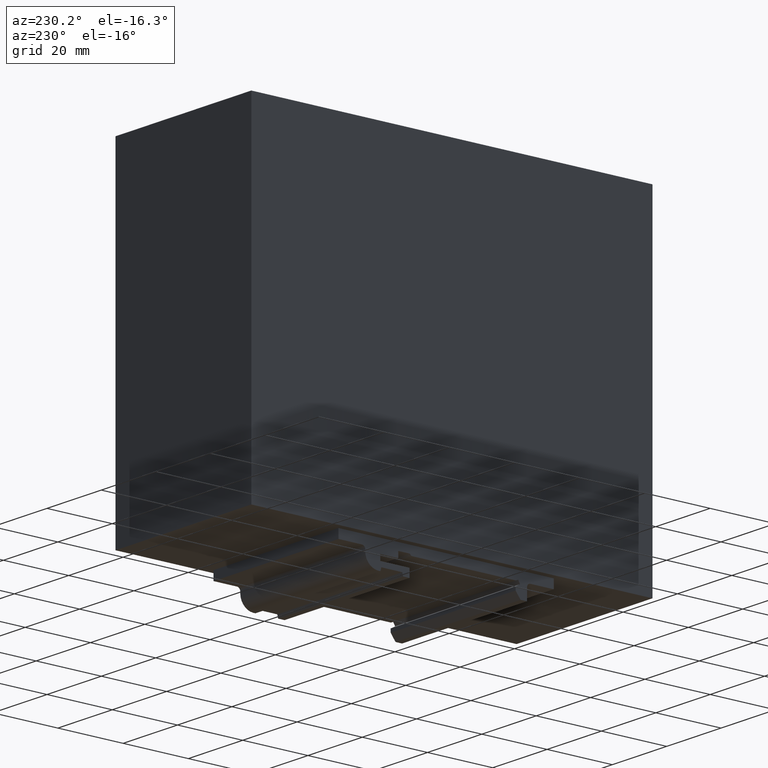
[diagram: clean part render]
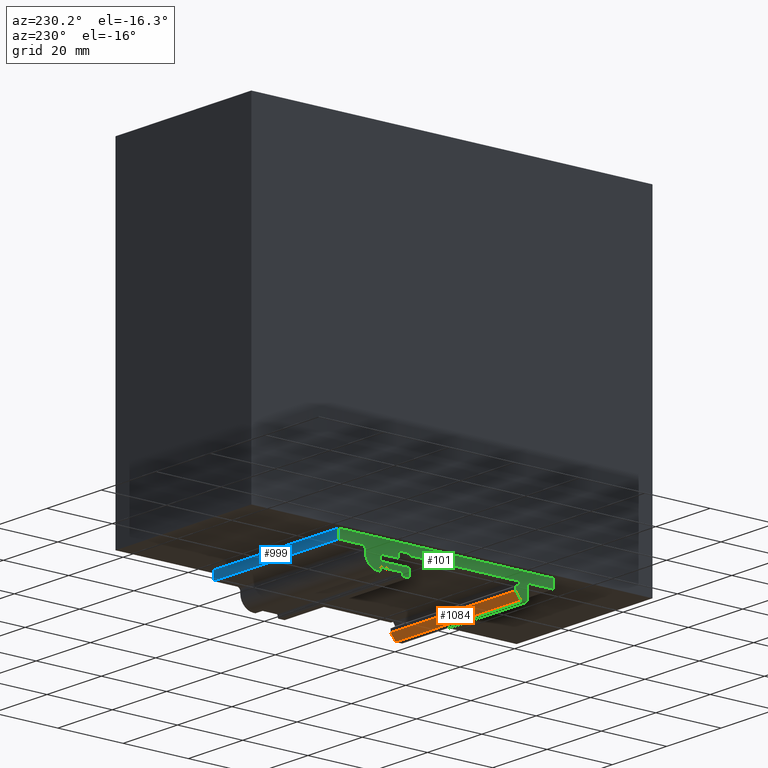
[diagram: same view with three faces highlighted in distinct colors, each labeled with its STEP entity id]
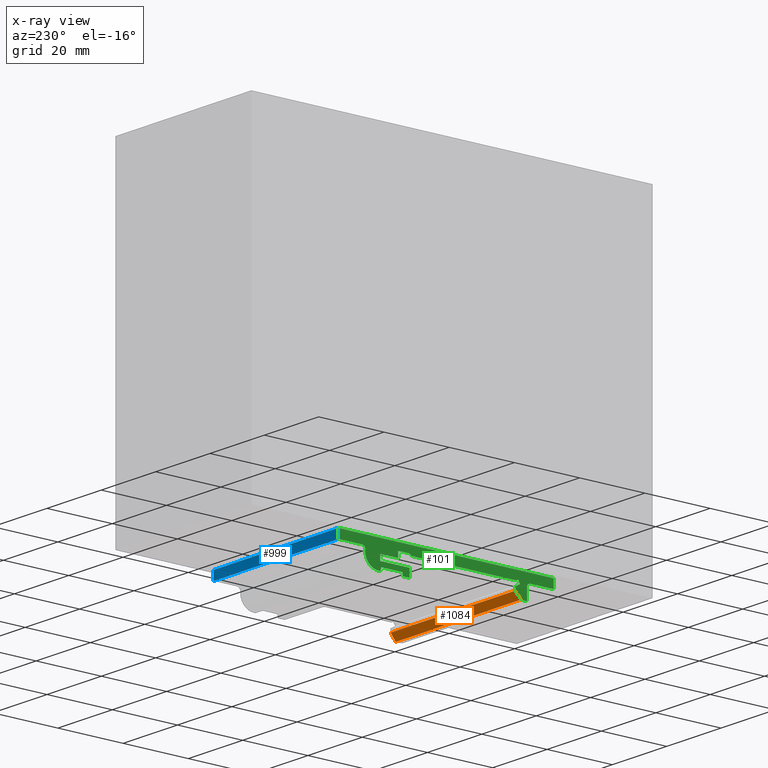
[diagram: x-ray of the same camera — body ghosted, the three highlighted faces saturated]
A machine part, auxiliary view with three faces highlighted in distinct colors.
The next image is the same camera in x-ray (body ghosted, the three faces saturated) — at least one of them is partly hidden behind the body in this view.
Their STEP definitions:

[orange] entity #1084 — the highlighted planar face has unit normal (0, -0.8, 0.6).
#20 = CARTESIAN_POINT ( 'NONE',  ( -25.00000000000000000, -21.19999999999999200, -55.99500000000000500 ) ) ;
#26 = CARTESIAN_POINT ( 'NONE',  ( 22.99999999999999300, -22.69999999999999200, -57.99500000000000500 ) ) ;
#31 = EDGE_CURVE ( 'NONE', #1041, #934, #838, .T. ) ;
#71 = CARTESIAN_POINT ( 'NONE',  ( 22.99999999999999300, -21.19999999999999200, -55.99500000000000500 ) ) ;
#82 = CARTESIAN_POINT ( 'NONE',  ( 0.0000000000000000000, -22.69999999999999200, -57.99500000000000500 ) ) ;
#93 = CARTESIAN_POINT ( 'NONE',  ( -23.00000000000000700, -24.21199999999998200, -60.01099999999999600 ) ) ;
#100 = VECTOR ( 'NONE', #741, 1000.000000000000000 ) ;
#110 = ORIENTED_EDGE ( 'NONE', *, *, #1024, .F. ) ;
#147 = VECTOR ( 'NONE', #177, 1000.000000000000100 ) ;
#154 = VECTOR ( 'NONE', #223, 1000.000000000000000 ) ;
#177 = DIRECTION ( 'NONE',  ( 0.0000000000000000000, -0.5999999999999990900, -0.8000000000000006000 ) ) ;
#178 = LINE ( 'NONE', #82, #100 ) ;
#223 = DIRECTION ( 'NONE',  ( 1.000000000000000000, -0.0000000000000000000, -0.0000000000000000000 ) ) ;
#280 = CARTESIAN_POINT ( 'NONE',  ( -23.00000000000000700, -21.19999999999999200, -55.99500000000000500 ) ) ;
#376 = DIRECTION ( 'NONE',  ( 0.0000000000000000000, -0.5999999999999992000, -0.8000000000000007100 ) ) ;
#506 = ORIENTED_EDGE ( 'NONE', *, *, #872, .T. ) ;
#517 = ORIENTED_EDGE ( 'NONE', *, *, #31, .T. ) ;
#525 = LINE ( 'NONE', #71, #147 ) ;
#557 = AXIS2_PLACEMENT_3D ( 'NONE', #653, #1104, #376 ) ;
#635 = EDGE_LOOP ( 'NONE', ( #517, #506, #852, #110 ) ) ;
#653 = CARTESIAN_POINT ( 'NONE',  ( -25.00000000000000000, -21.19999999999999200, -55.99500000000000500 ) ) ;
#731 = FACE_OUTER_BOUND ( 'NONE', #635, .T. ) ;
#741 = DIRECTION ( 'NONE',  ( -1.000000000000000000, 0.0000000000000000000, 0.0000000000000000000 ) ) ;
#754 = DIRECTION ( 'NONE',  ( 0.0000000000000000000, -0.5999999999999990900, -0.8000000000000007100 ) ) ;
#838 = LINE ( 'NONE', #20, #154 ) ;
#852 = ORIENTED_EDGE ( 'NONE', *, *, #921, .T. ) ;
#870 = VERTEX_POINT ( 'NONE', #1087 ) ;
#872 = EDGE_CURVE ( 'NONE', #934, #1173, #525, .T. ) ;
#903 = LINE ( 'NONE', #93, #1050 ) ;
#921 = EDGE_CURVE ( 'NONE', #1173, #870, #178, .T. ) ;
#934 = VERTEX_POINT ( 'NONE', #1000 ) ;
#1000 = CARTESIAN_POINT ( 'NONE',  ( 22.99999999999999300, -21.19999999999999200, -55.99500000000000500 ) ) ;
#1024 = EDGE_CURVE ( 'NONE', #1041, #870, #903, .T. ) ;
#1041 = VERTEX_POINT ( 'NONE', #280 ) ;
#1050 = VECTOR ( 'NONE', #754, 1000.000000000000000 ) ;
#1084 = ADVANCED_FACE ( 'NONE', ( #731 ), #1097, .F. ) ;
#1087 = CARTESIAN_POINT ( 'NONE',  ( -23.00000000000000700, -22.69999999999999200, -57.99500000000000500 ) ) ;
#1097 = PLANE ( 'NONE',  #557 ) ;
#1104 = DIRECTION ( 'NONE',  ( 0.0000000000000000000, -0.8000000000000007100, 0.5999999999999992000 ) ) ;
#1173 = VERTEX_POINT ( 'NONE', #26 ) ;

[blue] entity #999 — the highlighted planar face has unit normal (0, -1, -0).
#29 = ORIENTED_EDGE ( 'NONE', *, *, #264, .F. ) ;
#54 = EDGE_LOOP ( 'NONE', ( #693, #29, #1159, #800 ) ) ;
#125 = VERTEX_POINT ( 'NONE', #697 ) ;
#141 = DIRECTION ( 'NONE',  ( -0.0000000000000000000, -0.0000000000000000000, 1.000000000000000000 ) ) ;
#146 = CARTESIAN_POINT ( 'NONE',  ( 22.99999999999999300, 33.10000000000000900, -53.49500000000000500 ) ) ;
#179 = CARTESIAN_POINT ( 'NONE',  ( 22.99999999999999300, 33.10000000000000900, -50.79500000000000900 ) ) ;
#188 = DIRECTION ( 'NONE',  ( 0.0000000000000000000, -1.000000000000000000, -0.0000000000000000000 ) ) ;
#207 = LINE ( 'NONE', #373, #690 ) ;
#214 = VERTEX_POINT ( 'NONE', #146 ) ;
#264 = EDGE_CURVE ( 'NONE', #214, #599, #1153, .T. ) ;
#275 = AXIS2_PLACEMENT_3D ( 'NONE', #283, #188, #927 ) ;
#283 = CARTESIAN_POINT ( 'NONE',  ( 22.99999999999999300, 33.10000000000000900, -53.49500000000000500 ) ) ;
#373 = CARTESIAN_POINT ( 'NONE',  ( 22.99999999999999300, 33.10000000000000900, -53.49500000000000500 ) ) ;
#490 = CARTESIAN_POINT ( 'NONE',  ( 22.99999999999999300, 33.10000000000000900, -50.79500000000000900 ) ) ;
#518 = DIRECTION ( 'NONE',  ( -0.0000000000000000000, -0.0000000000000000000, 1.000000000000000000 ) ) ;
#578 = EDGE_CURVE ( 'NONE', #125, #599, #1141, .T. ) ;
#599 = VERTEX_POINT ( 'NONE', #490 ) ;
#622 = CARTESIAN_POINT ( 'NONE',  ( -23.00000000000000700, 33.10000000000000900, -53.49500000000000500 ) ) ;
#690 = VECTOR ( 'NONE', #1017, 1000.000000000000000 ) ;
#693 = ORIENTED_EDGE ( 'NONE', *, *, #578, .T. ) ;
#697 = CARTESIAN_POINT ( 'NONE',  ( -23.00000000000000700, 33.10000000000000900, -50.79500000000000900 ) ) ;
#739 = EDGE_CURVE ( 'NONE', #1008, #125, #1037, .T. ) ;
#800 = ORIENTED_EDGE ( 'NONE', *, *, #739, .T. ) ;
#833 = VECTOR ( 'NONE', #518, 1000.000000000000000 ) ;
#906 = VECTOR ( 'NONE', #944, 1000.000000000000000 ) ;
#927 = DIRECTION ( 'NONE',  ( 0.0000000000000000000, 0.0000000000000000000, -1.000000000000000000 ) ) ;
#930 = CARTESIAN_POINT ( 'NONE',  ( -23.00000000000000700, 33.10000000000000900, -53.49500000000000500 ) ) ;
#944 = DIRECTION ( 'NONE',  ( 1.000000000000000000, -0.0000000000000000000, -0.0000000000000000000 ) ) ;
#989 = FACE_OUTER_BOUND ( 'NONE', #54, .T. ) ;
#999 = ADVANCED_FACE ( 'NONE', ( #989 ), #1100, .F. ) ;
#1001 = EDGE_CURVE ( 'NONE', #1008, #214, #207, .T. ) ;
#1008 = VERTEX_POINT ( 'NONE', #930 ) ;
#1017 = DIRECTION ( 'NONE',  ( 1.000000000000000000, -0.0000000000000000000, -0.0000000000000000000 ) ) ;
#1037 = LINE ( 'NONE', #622, #833 ) ;
#1100 = PLANE ( 'NONE',  #275 ) ;
#1141 = LINE ( 'NONE', #179, #906 ) ;
#1153 = LINE ( 'NONE', #1158, #1171 ) ;
#1158 = CARTESIAN_POINT ( 'NONE',  ( 22.99999999999999300, 33.10000000000000900, -53.49500000000000500 ) ) ;
#1159 = ORIENTED_EDGE ( 'NONE', *, *, #1001, .F. ) ;
#1171 = VECTOR ( 'NONE', #141, 1000.000000000000000 ) ;

[green] entity #101 — the highlighted planar face has unit normal (1, -0, 0).
#2 = CARTESIAN_POINT ( 'NONE',  ( -23.00000000000000700, -32.89999999999999100, -53.49500000000000500 ) ) ;
#7 = CARTESIAN_POINT ( 'NONE',  ( -23.00000000000000700, 14.80000000000001500, -53.49500000000000500 ) ) ;
#10 = LINE ( 'NONE', #326, #691 ) ;
#14 = EDGE_LOOP ( 'NONE', ( #400, #259, #1076, #840, #368, #650, #893, #1134, #488, #356, #383, #1007, #1044, #1157, #520, #182, #825, #1028, #711, #681, #939, #318, #150, #519, #88, #755, #229, #1130, #503 ) ) ;
#17 = EDGE_CURVE ( 'NONE', #545, #709, #65, .T. ) ;
#18 = DIRECTION ( 'NONE',  ( -0.0000000000000000000, -0.8658650732445497500, 0.5002775978746304400 ) ) ;
#19 = DIRECTION ( 'NONE',  ( -0.0000000000000000000, -0.0000000000000000000, 1.000000000000000000 ) ) ;
#24 = EDGE_CURVE ( 'NONE', #531, #185, #529, .T. ) ;
#37 = EDGE_CURVE ( 'NONE', #963, #185, #498, .T. ) ;
#39 = CARTESIAN_POINT ( 'NONE',  ( -23.00000000000000700, 14.80000000000001300, -54.79500000000000200 ) ) ;
#40 = LINE ( 'NONE', #380, #1027 ) ;
#50 = EDGE_CURVE ( 'NONE', #135, #246, #162, .T. ) ;
#61 = CARTESIAN_POINT ( 'NONE',  ( -23.00000000000000700, -25.69999999999999200, -53.49500000000000500 ) ) ;
#65 = LINE ( 'NONE', #764, #466 ) ;
#70 = EDGE_CURVE ( 'NONE', #709, #135, #1109, .T. ) ;
#83 = EDGE_CURVE ( 'NONE', #180, #125, #10, .T. ) ;
#88 = ORIENTED_EDGE ( 'NONE', *, *, #1082, .T. ) ;
#89 = VECTOR ( 'NONE', #219, 1000.000000000000000 ) ;
#91 = EDGE_CURVE ( 'NONE', #439, #346, #1067, .T. ) ;
#93 = CARTESIAN_POINT ( 'NONE',  ( -23.00000000000000700, -24.21199999999998200, -60.01099999999999600 ) ) ;
#101 = ADVANCED_FACE ( 'NONE', ( #437 ), #1139, .F. ) ;
#116 = DIRECTION ( 'NONE',  ( 0.0000000000000000000, 1.000000000000000000, 0.0000000000000000000 ) ) ;
#117 = LINE ( 'NONE', #1155, #776 ) ;
#118 = VERTEX_POINT ( 'NONE', #39 ) ;
#123 = DIRECTION ( 'NONE',  ( 0.0000000000000000000, 1.000000000000000000, 0.0000000000000000000 ) ) ;
#125 = VERTEX_POINT ( 'NONE', #697 ) ;
#126 = AXIS2_PLACEMENT_3D ( 'NONE', #971, #783, #774 ) ;
#129 = CARTESIAN_POINT ( 'NONE',  ( -23.00000000000000700, 11.54496225184083300, -65.49513980799697800 ) ) ;
#131 = EDGE_CURVE ( 'NONE', #1041, #246, #782, .T. ) ;
#133 = CARTESIAN_POINT ( 'NONE',  ( -23.00000000000000700, -32.89999999999999100, -54.79500000000000200 ) ) ;
#134 = LINE ( 'NONE', #330, #1075 ) ;
#135 = VERTEX_POINT ( 'NONE', #316 ) ;
#140 = VERTEX_POINT ( 'NONE', #310 ) ;
#143 = EDGE_CURVE ( 'NONE', #140, #575, #905, .T. ) ;
#144 = EDGE_CURVE ( 'NONE', #1184, #118, #181, .T. ) ;
#150 = ORIENTED_EDGE ( 'NONE', *, *, #24, .T. ) ;
#155 = VERTEX_POINT ( 'NONE', #1051 ) ;
#158 = CARTESIAN_POINT ( 'NONE',  ( -23.00000000000000700, -21.19999999999999200, -54.95500000000000500 ) ) ;
#160 = CARTESIAN_POINT ( 'NONE',  ( -23.00000000000000700, 20.90000000000000900, -58.99500000000000500 ) ) ;
#162 = LINE ( 'NONE', #580, #716 ) ;
#180 = VERTEX_POINT ( 'NONE', #898 ) ;
#181 = LINE ( 'NONE', #133, #823 ) ;
#182 = ORIENTED_EDGE ( 'NONE', *, *, #17, .T. ) ;
#185 = VERTEX_POINT ( 'NONE', #61 ) ;
#190 = LINE ( 'NONE', #1022, #658 ) ;
#210 = VERTEX_POINT ( 'NONE', #607 ) ;
#219 = DIRECTION ( 'NONE',  ( -0.0000000000000000000, -0.0000000000000000000, 1.000000000000000000 ) ) ;
#222 = LINE ( 'NONE', #401, #974 ) ;
#224 = VECTOR ( 'NONE', #942, 1000.000000000000000 ) ;
#228 = DIRECTION ( 'NONE',  ( 0.0000000000000000000, -0.2606658522907637800, -0.9654290825583874400 ) ) ;
#229 = ORIENTED_EDGE ( 'NONE', *, *, #739, .F. ) ;
#238 = EDGE_CURVE ( 'NONE', #1190, #575, #470, .T. ) ;
#246 = VERTEX_POINT ( 'NONE', #158 ) ;
#249 = DIRECTION ( 'NONE',  ( -0.0000000000000000000, -1.000000000000000000, 1.982541115402065700E-015 ) ) ;
#259 = ORIENTED_EDGE ( 'NONE', *, *, #616, .T. ) ;
#265 = CARTESIAN_POINT ( 'NONE',  ( -23.00000000000000700, 14.80000000000001300, -52.99499999999999700 ) ) ;
#273 = DIRECTION ( 'NONE',  ( 0.0000000000000000000, -0.7071067811865376900, -0.7071067811865574500 ) ) ;
#280 = CARTESIAN_POINT ( 'NONE',  ( -23.00000000000000700, -21.19999999999999200, -55.99500000000000500 ) ) ;
#284 = VECTOR ( 'NONE', #997, 1000.000000000000000 ) ;
#287 = VERTEX_POINT ( 'NONE', #889 ) ;
#290 = CARTESIAN_POINT ( 'NONE',  ( -23.00000000000000700, 25.90000000000000900, -54.49500000000001200 ) ) ;
#303 = EDGE_CURVE ( 'NONE', #361, #210, #410, .T. ) ;
#306 = CARTESIAN_POINT ( 'NONE',  ( -23.00000000000000700, 24.90000000000000900, -54.99500000000000500 ) ) ;
#308 = CARTESIAN_POINT ( 'NONE',  ( -23.00000000000000700, 13.30000000000001300, -58.99500000000000500 ) ) ;
#310 = CARTESIAN_POINT ( 'NONE',  ( -23.00000000000000700, 13.57000000000001300, -57.99500000000000500 ) ) ;
#314 = LINE ( 'NONE', #2, #284 ) ;
#316 = CARTESIAN_POINT ( 'NONE',  ( -23.00000000000000700, -22.54999999999999400, -54.17500000000000400 ) ) ;
#317 = VECTOR ( 'NONE', #871, 1000.000000000000000 ) ;
#318 = ORIENTED_EDGE ( 'NONE', *, *, #594, .T. ) ;
#324 = DIRECTION ( 'NONE',  ( 1.000000000000000000, -0.0000000000000000000, 0.0000000000000000000 ) ) ;
#326 = CARTESIAN_POINT ( 'NONE',  ( -23.00000000000000700, -32.89999999999999100, -50.79500000000000900 ) ) ;
#330 = CARTESIAN_POINT ( 'NONE',  ( -23.00000000000000700, 11.30000000000001100, -58.99500000000000500 ) ) ;
#338 = CARTESIAN_POINT ( 'NONE',  ( -23.00000000000000700, -21.19999999999999200, -57.99500000000000500 ) ) ;
#346 = VERTEX_POINT ( 'NONE', #160 ) ;
#347 = CARTESIAN_POINT ( 'NONE',  ( -23.00000000000000700, -32.89999999999999100, -56.49500000000000500 ) ) ;
#352 = LINE ( 'NONE', #347, #392 ) ;
#356 = ORIENTED_EDGE ( 'NONE', *, *, #707, .T. ) ;
#359 = AXIS2_PLACEMENT_3D ( 'NONE', #290, #560, #553 ) ;
#361 = VERTEX_POINT ( 'NONE', #1180 ) ;
#367 = VECTOR ( 'NONE', #424, 1000.000000000000000 ) ;
#368 = ORIENTED_EDGE ( 'NONE', *, *, #1036, .T. ) ;
#370 = VECTOR ( 'NONE', #1135, 1000.000000000000100 ) ;
#371 = VERTEX_POINT ( 'NONE', #915 ) ;
#380 = CARTESIAN_POINT ( 'NONE',  ( -23.00000000000000700, -24.69999999999999200, -57.99500000000000500 ) ) ;
#381 = VECTOR ( 'NONE', #1147, 1000.000000000000000 ) ;
#383 = ORIENTED_EDGE ( 'NONE', *, *, #144, .T. ) ;
#385 = CARTESIAN_POINT ( 'NONE',  ( -23.00000000000000700, -24.69999999999999200, -57.99500000000000500 ) ) ;
#389 = CARTESIAN_POINT ( 'NONE',  ( -23.00000000000000700, 20.90000000000000900, -54.99500000000000500 ) ) ;
#390 = DIRECTION ( 'NONE',  ( -1.000000000000000000, 0.0000000000000000000, -0.0000000000000000000 ) ) ;
#392 = VECTOR ( 'NONE', #1060, 1000.000000000000000 ) ;
#400 = ORIENTED_EDGE ( 'NONE', *, *, #763, .F. ) ;
#401 = CARTESIAN_POINT ( 'NONE',  ( -23.00000000000000700, 15.26385497250436900, -40.49075915742370300 ) ) ;
#405 = DIRECTION ( 'NONE',  ( 0.0000000000000000000, 0.8658650732445497500, -0.5002775978746303300 ) ) ;
#406 = VECTOR ( 'NONE', #882, 1000.000000000000000 ) ;
#410 = LINE ( 'NONE', #625, #440 ) ;
#424 = DIRECTION ( 'NONE',  ( -0.0000000000000000000, -0.0000000000000000000, 1.000000000000000000 ) ) ;
#435 = CIRCLE ( 'NONE', #359, 1.000000000000000900 ) ;
#437 = FACE_OUTER_BOUND ( 'NONE', #14, .T. ) ;
#439 = VERTEX_POINT ( 'NONE', #1010 ) ;
#440 = VECTOR ( 'NONE', #273, 999.9999999999998900 ) ;
#452 = CARTESIAN_POINT ( 'NONE',  ( -23.00000000000000700, -24.69999999999999200, -54.49500000000001200 ) ) ;
#466 = VECTOR ( 'NONE', #18, 1000.000000000000100 ) ;
#470 = LINE ( 'NONE', #806, #850 ) ;
#488 = ORIENTED_EDGE ( 'NONE', *, *, #775, .T. ) ;
#491 = DIRECTION ( 'NONE',  ( -0.0000000000000000000, -1.000000000000000000, 0.0000000000000000000 ) ) ;
#498 = LINE ( 'NONE', #595, #617 ) ;
#502 = CARTESIAN_POINT ( 'NONE',  ( -23.00000000000000700, 24.90000000000000900, -58.99500000000000500 ) ) ;
#503 = ORIENTED_EDGE ( 'NONE', *, *, #1072, .T. ) ;
#511 = CARTESIAN_POINT ( 'NONE',  ( -23.00000000000000700, 11.30000000000001100, -58.99500000000000500 ) ) ;
#514 = VECTOR ( 'NONE', #1163, 1000.000000000000000 ) ;
#518 = DIRECTION ( 'NONE',  ( -0.0000000000000000000, -0.0000000000000000000, 1.000000000000000000 ) ) ;
#519 = ORIENTED_EDGE ( 'NONE', *, *, #37, .F. ) ;
#520 = ORIENTED_EDGE ( 'NONE', *, *, #929, .F. ) ;
#529 = CIRCLE ( 'NONE', #1030, 1.000000000000000900 ) ;
#531 = VERTEX_POINT ( 'NONE', #452 ) ;
#545 = VERTEX_POINT ( 'NONE', #1019 ) ;
#553 = DIRECTION ( 'NONE',  ( 0.0000000000000000000, 0.0000000000000000000, -1.000000000000000000 ) ) ;
#560 = DIRECTION ( 'NONE',  ( 1.000000000000000000, -0.0000000000000000000, 0.0000000000000000000 ) ) ;
#573 = CARTESIAN_POINT ( 'NONE',  ( -23.00000000000000700, -32.89999999999999100, -53.49500000000000500 ) ) ;
#575 = VERTEX_POINT ( 'NONE', #308 ) ;
#577 = VERTEX_POINT ( 'NONE', #306 ) ;
#580 = CARTESIAN_POINT ( 'NONE',  ( -23.00000000000000700, -30.60418363569046100, -49.52147167715660500 ) ) ;
#582 = LINE ( 'NONE', #670, #831 ) ;
#591 = CARTESIAN_POINT ( 'NONE',  ( -23.00000000000000700, 20.30000000000001100, -53.49500000000000500 ) ) ;
#594 = EDGE_CURVE ( 'NONE', #969, #531, #40, .T. ) ;
#595 = CARTESIAN_POINT ( 'NONE',  ( -23.00000000000000700, -32.89999999999999100, -53.49500000000000500 ) ) ;
#607 = CARTESIAN_POINT ( 'NONE',  ( -23.00000000000000700, 10.80000000000001300, -53.49500000000000500 ) ) ;
#616 = EDGE_CURVE ( 'NONE', #577, #346, #1110, .T. ) ;
#617 = VECTOR ( 'NONE', #123, 1000.000000000000000 ) ;
#622 = CARTESIAN_POINT ( 'NONE',  ( -23.00000000000000700, 33.10000000000000900, -53.49500000000000500 ) ) ;
#624 = EDGE_CURVE ( 'NONE', #853, #1008, #962, .T. ) ;
#625 = CARTESIAN_POINT ( 'NONE',  ( -23.00000000000000700, -11.04999999999938300, -75.34500000000001300 ) ) ;
#645 = VECTOR ( 'NONE', #228, 1000.000000000000000 ) ;
#649 = VERTEX_POINT ( 'NONE', #858 ) ;
#650 = ORIENTED_EDGE ( 'NONE', *, *, #143, .T. ) ;
#654 = DIRECTION ( 'NONE',  ( -0.0000000000000000000, -0.0000000000000000000, 1.000000000000000000 ) ) ;
#658 = VECTOR ( 'NONE', #1117, 1000.000000000000000 ) ;
#661 = LINE ( 'NONE', #591, #381 ) ;
#670 = CARTESIAN_POINT ( 'NONE',  ( -23.00000000000000700, -32.89999999999999100, -53.49500000000000500 ) ) ;
#681 = ORIENTED_EDGE ( 'NONE', *, *, #1024, .T. ) ;
#691 = VECTOR ( 'NONE', #116, 1000.000000000000000 ) ;
#697 = CARTESIAN_POINT ( 'NONE',  ( -23.00000000000000700, 33.10000000000000900, -50.79500000000000900 ) ) ;
#707 = EDGE_CURVE ( 'NONE', #155, #1184, #661, .T. ) ;
#709 = VERTEX_POINT ( 'NONE', #1138 ) ;
#711 = ORIENTED_EDGE ( 'NONE', *, *, #131, .F. ) ;
#713 = EDGE_CURVE ( 'NONE', #1190, #649, #134, .T. ) ;
#716 = VECTOR ( 'NONE', #405, 1000.000000000000100 ) ;
#728 = EDGE_CURVE ( 'NONE', #969, #870, #820, .T. ) ;
#739 = EDGE_CURVE ( 'NONE', #1008, #125, #1037, .T. ) ;
#747 = CARTESIAN_POINT ( 'NONE',  ( -23.00000000000000700, -32.89999999999999100, -53.49500000000000500 ) ) ;
#754 = DIRECTION ( 'NONE',  ( 0.0000000000000000000, -0.5999999999999990900, -0.8000000000000007100 ) ) ;
#755 = ORIENTED_EDGE ( 'NONE', *, *, #83, .T. ) ;
#763 = EDGE_CURVE ( 'NONE', #577, #371, #892, .T. ) ;
#764 = CARTESIAN_POINT ( 'NONE',  ( -23.00000000000000700, -30.00385051824090300, -48.48243358926314500 ) ) ;
#774 = DIRECTION ( 'NONE',  ( 0.0000000000000000000, 0.0000000000000000000, -1.000000000000000000 ) ) ;
#775 = EDGE_CURVE ( 'NONE', #649, #155, #352, .T. ) ;
#776 = VECTOR ( 'NONE', #249, 1000.000000000000000 ) ;
#777 = CARTESIAN_POINT ( 'NONE',  ( -23.00000000000000700, 20.30000000000001100, -54.79500000000000200 ) ) ;
#782 = LINE ( 'NONE', #875, #89 ) ;
#783 = DIRECTION ( 'NONE',  ( 1.000000000000000000, -0.0000000000000000000, 0.0000000000000000000 ) ) ;
#787 = EDGE_CURVE ( 'NONE', #883, #361, #117, .T. ) ;
#788 = CARTESIAN_POINT ( 'NONE',  ( -23.00000000000000700, -25.69999999999999200, -54.49500000000001200 ) ) ;
#806 = CARTESIAN_POINT ( 'NONE',  ( -23.00000000000000700, 24.90000000000000900, -58.99500000000000500 ) ) ;
#817 = CARTESIAN_POINT ( 'NONE',  ( -23.00000000000000700, 25.90000000000001300, -53.49500000000000500 ) ) ;
#820 = LINE ( 'NONE', #338, #514 ) ;
#823 = VECTOR ( 'NONE', #491, 1000.000000000000000 ) ;
#825 = ORIENTED_EDGE ( 'NONE', *, *, #70, .T. ) ;
#831 = VECTOR ( 'NONE', #654, 1000.000000000000000 ) ;
#833 = VECTOR ( 'NONE', #518, 1000.000000000000000 ) ;
#840 = ORIENTED_EDGE ( 'NONE', *, *, #1156, .T. ) ;
#850 = VECTOR ( 'NONE', #984, 1000.000000000000000 ) ;
#853 = VERTEX_POINT ( 'NONE', #817 ) ;
#858 = CARTESIAN_POINT ( 'NONE',  ( -23.00000000000000700, 11.30000000000001100, -56.49500000000000500 ) ) ;
#870 = VERTEX_POINT ( 'NONE', #1087 ) ;
#871 = DIRECTION ( 'NONE',  ( 0.0000000000000000000, 1.000000000000000000, 0.0000000000000000000 ) ) ;
#875 = CARTESIAN_POINT ( 'NONE',  ( -23.00000000000000700, -21.19999999999999200, -57.99500000000000500 ) ) ;
#877 = DIRECTION ( 'NONE',  ( 0.0000000000000000000, 0.0000000000000000000, -1.000000000000000000 ) ) ;
#882 = DIRECTION ( 'NONE',  ( -0.0000000000000000000, 1.000000000000000000, -0.0000000000000000000 ) ) ;
#883 = VERTEX_POINT ( 'NONE', #265 ) ;
#889 = CARTESIAN_POINT ( 'NONE',  ( -23.00000000000000700, 19.99000000000001300, -57.99500000000000500 ) ) ;
#892 = LINE ( 'NONE', #1058, #367 ) ;
#893 = ORIENTED_EDGE ( 'NONE', *, *, #238, .F. ) ;
#898 = CARTESIAN_POINT ( 'NONE',  ( -23.00000000000000700, -32.89999999999999100, -50.79500000000000900 ) ) ;
#903 = LINE ( 'NONE', #93, #1050 ) ;
#905 = LINE ( 'NONE', #129, #645 ) ;
#915 = CARTESIAN_POINT ( 'NONE',  ( -23.00000000000000700, 24.90000000000000900, -54.49500000000001200 ) ) ;
#929 = EDGE_CURVE ( 'NONE', #545, #210, #314, .T. ) ;
#930 = CARTESIAN_POINT ( 'NONE',  ( -23.00000000000000700, 33.10000000000000900, -53.49500000000000500 ) ) ;
#939 = ORIENTED_EDGE ( 'NONE', *, *, #728, .F. ) ;
#942 = DIRECTION ( 'NONE',  ( 0.0000000000000000000, 0.0000000000000000000, 1.000000000000000000 ) ) ;
#943 = EDGE_CURVE ( 'NONE', #118, #883, #1125, .T. ) ;
#962 = LINE ( 'NONE', #573, #317 ) ;
#963 = VERTEX_POINT ( 'NONE', #747 ) ;
#969 = VERTEX_POINT ( 'NONE', #385 ) ;
#971 = CARTESIAN_POINT ( 'NONE',  ( -23.00000000000000700, -32.89999999999999100, -53.49500000000000500 ) ) ;
#974 = VECTOR ( 'NONE', #1131, 1000.000000000000100 ) ;
#984 = DIRECTION ( 'NONE',  ( -0.0000000000000000000, 1.000000000000000000, -0.0000000000000000000 ) ) ;
#992 = AXIS2_PLACEMENT_3D ( 'NONE', #389, #390, #1035 ) ;
#997 = DIRECTION ( 'NONE',  ( 0.0000000000000000000, 1.000000000000000000, 0.0000000000000000000 ) ) ;
#1007 = ORIENTED_EDGE ( 'NONE', *, *, #943, .T. ) ;
#1008 = VERTEX_POINT ( 'NONE', #930 ) ;
#1010 = CARTESIAN_POINT ( 'NONE',  ( -23.00000000000000700, 20.26000000000001600, -58.99500000000000500 ) ) ;
#1019 = CARTESIAN_POINT ( 'NONE',  ( -23.00000000000000700, -21.32825480735020600, -53.49500000000000500 ) ) ;
#1022 = CARTESIAN_POINT ( 'NONE',  ( -23.00000000000000700, -32.89999999999999100, -57.99500000000000500 ) ) ;
#1024 = EDGE_CURVE ( 'NONE', #1041, #870, #903, .T. ) ;
#1027 = VECTOR ( 'NONE', #19, 1000.000000000000000 ) ;
#1028 = ORIENTED_EDGE ( 'NONE', *, *, #50, .T. ) ;
#1030 = AXIS2_PLACEMENT_3D ( 'NONE', #788, #324, #877 ) ;
#1035 = DIRECTION ( 'NONE',  ( 0.0000000000000000000, 0.0000000000000000000, -1.000000000000000000 ) ) ;
#1036 = EDGE_CURVE ( 'NONE', #287, #140, #190, .T. ) ;
#1037 = LINE ( 'NONE', #622, #833 ) ;
#1041 = VERTEX_POINT ( 'NONE', #280 ) ;
#1044 = ORIENTED_EDGE ( 'NONE', *, *, #787, .T. ) ;
#1050 = VECTOR ( 'NONE', #754, 1000.000000000000000 ) ;
#1051 = CARTESIAN_POINT ( 'NONE',  ( -23.00000000000000700, 20.30000000000001100, -56.49500000000000500 ) ) ;
#1058 = CARTESIAN_POINT ( 'NONE',  ( -23.00000000000000700, 24.90000000000000900, -58.99500000000000500 ) ) ;
#1060 = DIRECTION ( 'NONE',  ( 0.0000000000000000000, 1.000000000000000000, 0.0000000000000000000 ) ) ;
#1067 = LINE ( 'NONE', #502, #406 ) ;
#1072 = EDGE_CURVE ( 'NONE', #853, #371, #435, .T. ) ;
#1075 = VECTOR ( 'NONE', #1137, 1000.000000000000000 ) ;
#1076 = ORIENTED_EDGE ( 'NONE', *, *, #91, .F. ) ;
#1082 = EDGE_CURVE ( 'NONE', #963, #180, #582, .T. ) ;
#1087 = CARTESIAN_POINT ( 'NONE',  ( -23.00000000000000700, -22.69999999999999200, -57.99500000000000500 ) ) ;
#1109 = LINE ( 'NONE', #1127, #370 ) ;
#1110 = CIRCLE ( 'NONE', #992, 4.000000000000003600 ) ;
#1117 = DIRECTION ( 'NONE',  ( -0.0000000000000000000, -1.000000000000000000, 0.0000000000000000000 ) ) ;
#1125 = LINE ( 'NONE', #7, #224 ) ;
#1127 = CARTESIAN_POINT ( 'NONE',  ( -23.00000000000000700, -24.84581636430950600, -58.14852832284339000 ) ) ;
#1130 = ORIENTED_EDGE ( 'NONE', *, *, #624, .F. ) ;
#1131 = DIRECTION ( 'NONE',  ( -0.0000000000000000000, -0.2606658522907670000, 0.9654290825583865500 ) ) ;
#1134 = ORIENTED_EDGE ( 'NONE', *, *, #713, .T. ) ;
#1135 = DIRECTION ( 'NONE',  ( 0.0000000000000000000, -0.5002775978746284400, -0.8658650732445508600 ) ) ;
#1137 = DIRECTION ( 'NONE',  ( -0.0000000000000000000, -0.0000000000000000000, 1.000000000000000000 ) ) ;
#1138 = CARTESIAN_POINT ( 'NONE',  ( -23.00000000000000700, -21.94966688255043900, -53.13596191210653800 ) ) ;
#1139 = PLANE ( 'NONE',  #126 ) ;
#1147 = DIRECTION ( 'NONE',  ( 0.0000000000000000000, 0.0000000000000000000, 1.000000000000000000 ) ) ;
#1156 = EDGE_CURVE ( 'NONE', #439, #287, #222, .T. ) ;
#1155 = CARTESIAN_POINT ( 'NONE',  ( -23.00000000000000700, -32.89999999999999100, -52.99499999999990500 ) ) ;
#1157 = ORIENTED_EDGE ( 'NONE', *, *, #303, .T. ) ;
#1163 = DIRECTION ( 'NONE',  ( -0.0000000000000000000, 1.000000000000000000, -0.0000000000000000000 ) ) ;
#1180 = CARTESIAN_POINT ( 'NONE',  ( -23.00000000000000700, 11.30000000000001300, -52.99499999999999000 ) ) ;
#1184 = VERTEX_POINT ( 'NONE', #777 ) ;
#1190 = VERTEX_POINT ( 'NONE', #511 ) ;